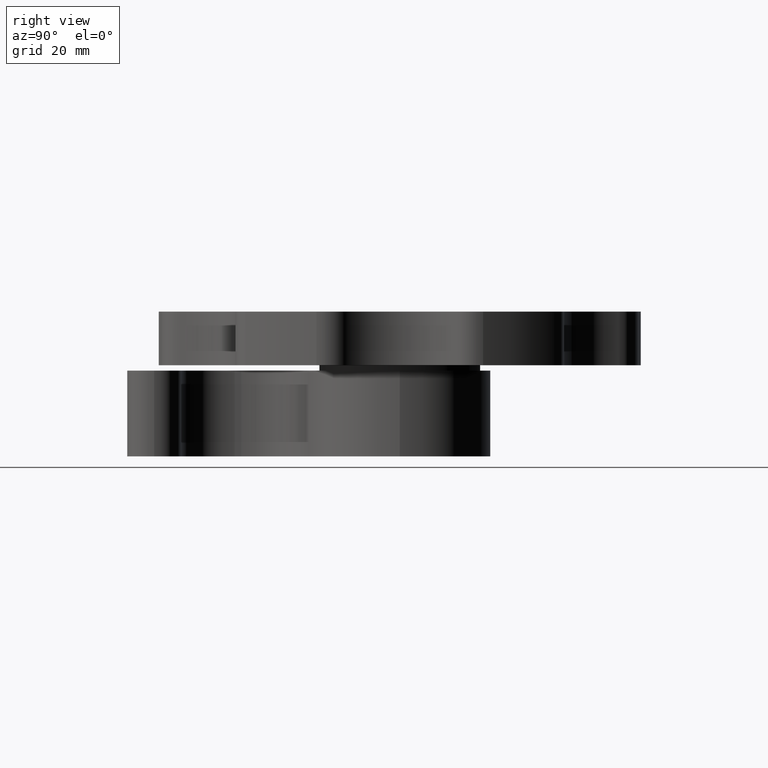
[diagram: clean part render]
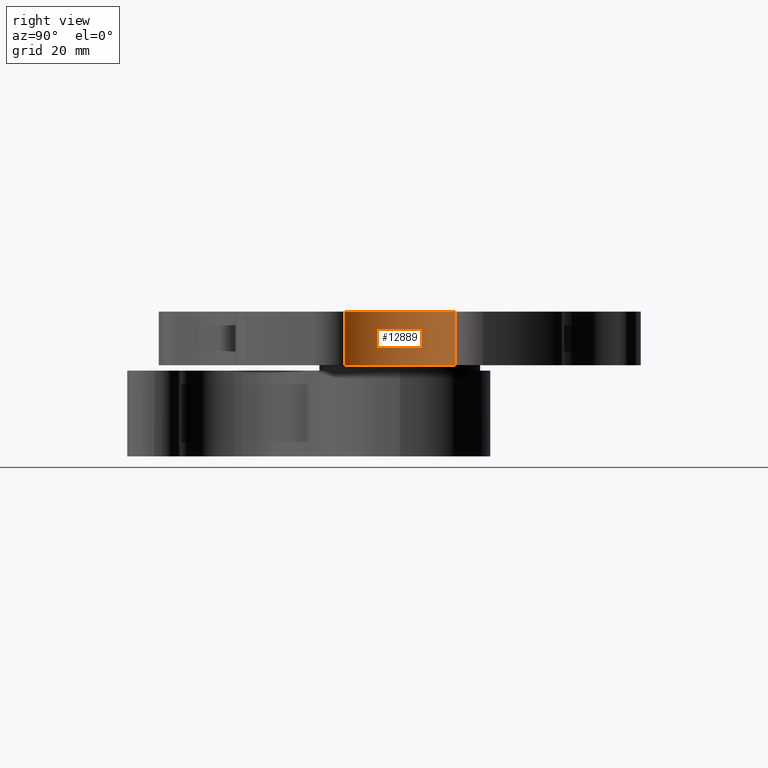
[diagram: same view with one face highlighted and labeled with its STEP entity id]
A machine part, right view. The second image highlights one B-rep face of the part: STEP entity #12889.
In plain terms, the highlighted cylindrical surface (partial cylindrical patch) has radius 15 mm, axis along (0, 0, -1).
Its self-contained STEP definition (entity closure, byte-faithful):
#106 = AXIS2_PLACEMENT_3D ( 'NONE', #2273, #12081, #1174 ) ;
#473 = VECTOR ( 'NONE', #7954, 1000.000000000000000 ) ;
#984 = DIRECTION ( 'NONE',  ( -0.4999999999999948900, -0.8660254037844415900, -1.156482317317869300E-016 ) ) ;
#1174 = DIRECTION ( 'NONE',  ( -0.4999999999999948900, -0.8660254037844415900, -1.156482317317869300E-016 ) ) ;
#1234 = LINE ( 'NONE', #1643, #1606 ) ;
#1250 = CARTESIAN_POINT ( 'NONE',  ( 41.15384615384610400, 10.36151276337435700, 11.00000000000001100 ) ) ;
#1519 = DIRECTION ( 'NONE',  ( 2.057959674044430800E-031, 1.224606353822377500E-016, -1.000000000000000000 ) ) ;
#1606 = VECTOR ( 'NONE', #11087, 1000.000000000000000 ) ;
#1643 = CARTESIAN_POINT ( 'NONE',  ( 41.15384615384610400, 10.36151276337435700, 11.00000000000001100 ) ) ;
#2252 = VERTEX_POINT ( 'NONE', #15510 ) ;
#2273 = CARTESIAN_POINT ( 'NONE',  ( 52.00000000000017100, 2.649025747022970600E-013, 11.00000000000001100 ) ) ;
#2665 = AXIS2_PLACEMENT_3D ( 'NONE', #3492, #14261, #984 ) ;
#3032 = CIRCLE ( 'NONE', #11169, 15.00000000000002700 ) ;
#3326 = EDGE_LOOP ( 'NONE', ( #12547, #6577, #5132, #11676 ) ) ;
#3492 = CARTESIAN_POINT ( 'NONE',  ( 52.00000000000017100, 2.649025747022970600E-013, 11.00000000000001100 ) ) ;
#3661 = LINE ( 'NONE', #10308, #473 ) ;
#4375 = EDGE_CURVE ( 'NONE', #7125, #8583, #1234, .T. ) ;
#5020 = EDGE_CURVE ( 'NONE', #11325, #2252, #3661, .T. ) ;
#5132 = ORIENTED_EDGE ( 'NONE', *, *, #11108, .F. ) ;
#5157 = DIRECTION ( 'NONE',  ( -0.4999999999999948900, -0.8660254037844415900, -1.011922027653135700E-016 ) ) ;
#5500 = FACE_OUTER_BOUND ( 'NONE', #3326, .T. ) ;
#6577 = ORIENTED_EDGE ( 'NONE', *, *, #4375, .F. ) ;
#7125 = VERTEX_POINT ( 'NONE', #1250 ) ;
#7954 = DIRECTION ( 'NONE',  ( 2.057959674044430800E-031, 1.224606353822377500E-016, -1.000000000000000000 ) ) ;
#8583 = VERTEX_POINT ( 'NONE', #11893 ) ;
#10158 = CARTESIAN_POINT ( 'NONE',  ( 41.15384615384645900, -10.36151276337365700, 11.00000000000001100 ) ) ;
#10308 = CARTESIAN_POINT ( 'NONE',  ( 41.15384615384645900, -10.36151276337365700, 11.00000000000001100 ) ) ;
#11087 = DIRECTION ( 'NONE',  ( 2.057959674044430800E-031, 1.224606353822377500E-016, -1.000000000000000000 ) ) ;
#11108 = EDGE_CURVE ( 'NONE', #11325, #7125, #11177, .T. ) ;
#11169 = AXIS2_PLACEMENT_3D ( 'NONE', #12329, #1519, #5157 ) ;
#11177 = CIRCLE ( 'NONE', #106, 15.00000000000002700 ) ;
#11325 = VERTEX_POINT ( 'NONE', #10158 ) ;
#11676 = ORIENTED_EDGE ( 'NONE', *, *, #5020, .T. ) ;
#11893 = CARTESIAN_POINT ( 'NONE',  ( 41.15384615384610400, 10.36151276337436800, 1.000000000000010000 ) ) ;
#12081 = DIRECTION ( 'NONE',  ( 2.057959674044430800E-031, 1.224606353822377500E-016, -1.000000000000000000 ) ) ;
#12329 = CARTESIAN_POINT ( 'NONE',  ( 52.00000000000017100, 2.649025747022970600E-013, 1.000000000000008700 ) ) ;
#12547 = ORIENTED_EDGE ( 'NONE', *, *, #13849, .T. ) ;
#12889 = ADVANCED_FACE ( 'NONE', ( #5500 ), #15101, .F. ) ;
#13849 = EDGE_CURVE ( 'NONE', #2252, #8583, #3032, .T. ) ;
#14261 = DIRECTION ( 'NONE',  ( 2.057959674044430800E-031, 1.224606353822377500E-016, -1.000000000000000000 ) ) ;
#15101 = CYLINDRICAL_SURFACE ( 'NONE', #2665, 15.00000000000002700 ) ;
#15510 = CARTESIAN_POINT ( 'NONE',  ( 41.15384615384645900, -10.36151276337366200, 1.000000000000007300 ) ) ;